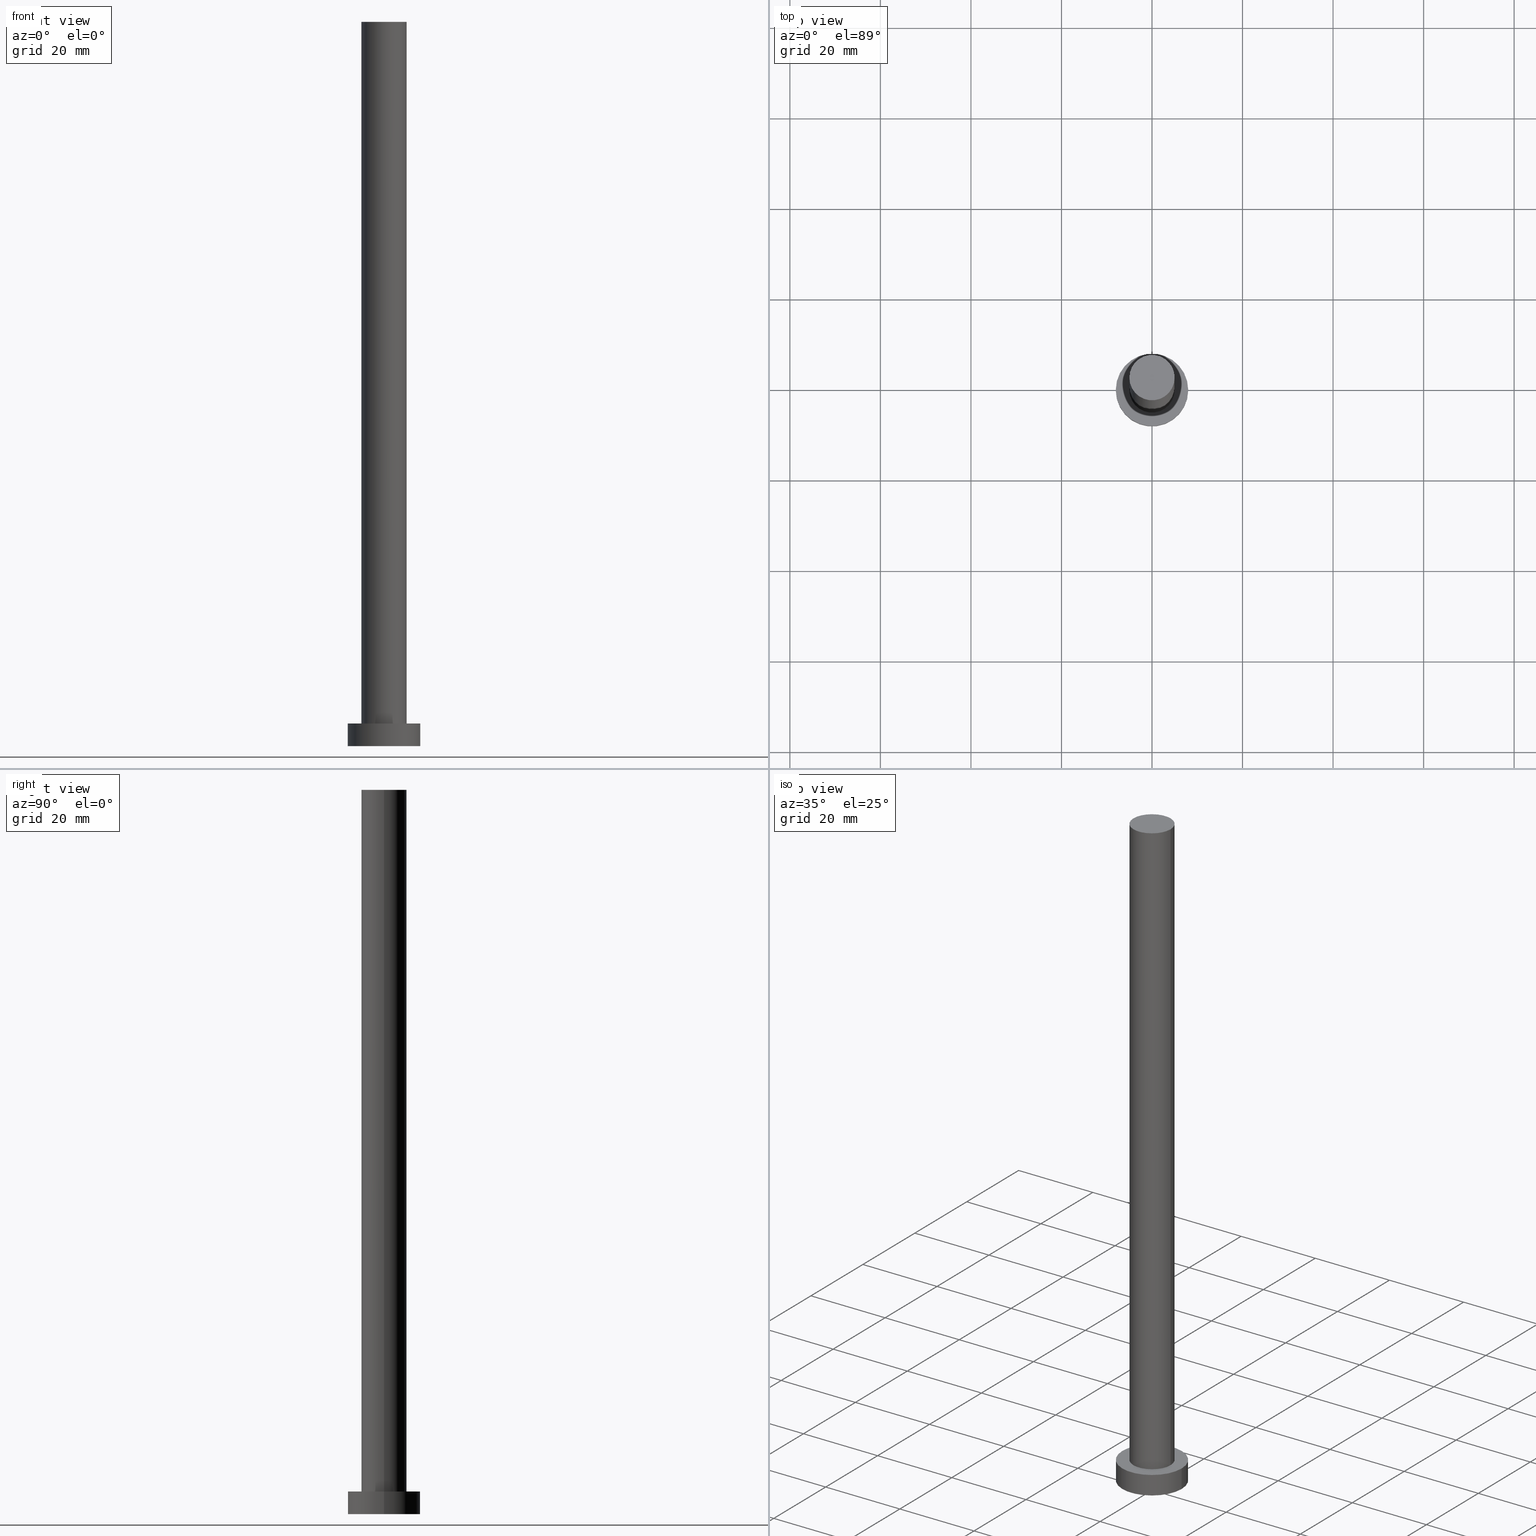
[diagram: canonical four-view strip — front | top / right | iso, engineering-drawing reading convention]
A machine part, canonical four-view strip (front | top / right | iso — engineering-drawing reading convention). The complete STEP part file that produces these views, byte-faithful:
ISO-10303-21;
HEADER;
FILE_DESCRIPTION (( 'STEP AP203' ),
    '1' );
FILE_NAME ('f881.STEP',
    '2023-02-13T09:59:52',
    ( '' ),
    ( '' ),
    'SwSTEP 2.0',
    'SolidWorks 2019',
    '' );
FILE_SCHEMA (( 'CONFIG_CONTROL_DESIGN' ));
ENDSEC;

DATA;
#1 = CARTESIAN_POINT ( 'NONE',  ( 0.000000000000000000, 0.000000000000000000, 5.000000000000000000 ) ) ;
#2 = DIRECTION ( 'NONE',  ( -0.000000000000000000, -0.000000000000000000, -1.000000000000000000 ) ) ;
#3 = MECHANICAL_CONTEXT ( 'NONE', #210, 'mechanical' ) ;
#4 = CC_DESIGN_PERSON_AND_ORGANIZATION_ASSIGNMENT ( #136, #18, ( #250 ) ) ;
#5 = EDGE_CURVE ( 'NONE', #61, #135, #111, .T. ) ;
#6 = EDGE_LOOP ( 'NONE', ( #156, #59, #101, #84 ) ) ;
#7 = AXIS2_PLACEMENT_3D ( 'NONE', #244, #173, #52 ) ;
#8 = CARTESIAN_POINT ( 'NONE',  ( 0.000000000000000000, 0.000000000000000000, 0.000000000000000000 ) ) ;
#9 = DIRECTION ( 'NONE',  ( -0.000000000000000000, -0.000000000000000000, -1.000000000000000000 ) ) ;
#10 = CARTESIAN_POINT ( 'NONE',  ( 0.000000000000000000, 0.000000000000000000, 0.000000000000000000 ) ) ;
#11 = CARTESIAN_POINT ( 'NONE',  ( -5.000000000000000888, 0.000000000000000000, 160.0000000000000000 ) ) ;
#12 = COORDINATED_UNIVERSAL_TIME_OFFSET ( 1, 0, .AHEAD. ) ;
#13 = ORIENTED_EDGE ( 'NONE', *, *, #5, .T. ) ;
#14 = CARTESIAN_POINT ( 'NONE',  ( 0.000000000000000000, 0.000000000000000000, 5.000000000000000000 ) ) ;
#15 = COORDINATED_UNIVERSAL_TIME_OFFSET ( 1, 0, .AHEAD. ) ;
#16 = LINE ( 'NONE', #11, #89 ) ;
#17 = PERSON_AND_ORGANIZATION ( #64, #200 ) ;
#18 = PERSON_AND_ORGANIZATION_ROLE ( 'classification_officer' ) ;
#19 = EDGE_CURVE ( 'NONE', #247, #108, #204, .T. ) ;
#20 = CC_DESIGN_SECURITY_CLASSIFICATION ( #250, ( #107 ) ) ;
#21 = ORIENTED_EDGE ( 'NONE', *, *, #45, .F. ) ;
#22 = CARTESIAN_POINT ( 'NONE',  ( -8.000000000000000000, 0.000000000000000000, 5.000000000000000000 ) ) ;
#23 = DIRECTION ( 'NONE',  ( 0.000000000000000000, 0.000000000000000000, 1.000000000000000000 ) ) ;
#24 = DIRECTION ( 'NONE',  ( 0.000000000000000000, 0.000000000000000000, 1.000000000000000000 ) ) ;
#25 = FACE_OUTER_BOUND ( 'NONE', #44, .T. ) ;
#26 = CYLINDRICAL_SURFACE ( 'NONE', #92, 8.000000000000000000 ) ;
#27 = CLOSED_SHELL ( 'NONE', ( #159, #229, #116, #184, #142, #246, #76 ) ) ;
#28 = CARTESIAN_POINT ( 'NONE',  ( 0.000000000000000000, 0.000000000000000000, 160.0000000000000000 ) ) ;
#29 = CC_DESIGN_PERSON_AND_ORGANIZATION_ASSIGNMENT ( #153, #228, ( #87 ) ) ;
#30 = FACE_BOUND ( 'NONE', #42, .T. ) ;
#31 = EDGE_LOOP ( 'NONE', ( #208, #211, #163, #60 ) ) ;
#32 = CARTESIAN_POINT ( 'NONE',  ( -8.000000000000000000, 0.000000000000000000, 5.000000000000000000 ) ) ;
#33 = VERTEX_POINT ( 'NONE', #46 ) ;
#34 = VECTOR ( 'NONE', #9, 1000.000000000000000 ) ;
#35 = AXIS2_PLACEMENT_3D ( 'NONE', #202, #242, #100 ) ;
#36 = APPROVAL_DATE_TIME ( #40, #131 ) ;
#37 = ORIENTED_EDGE ( 'NONE', *, *, #81, .T. ) ;
#38 = DATE_TIME_ROLE ( 'creation_date' ) ;
#39 = ORIENTED_EDGE ( 'NONE', *, *, #5, .F. ) ;
#40 = DATE_AND_TIME ( #171, #206 ) ;
#41 = ORIENTED_EDGE ( 'NONE', *, *, #109, .F. ) ;
#42 = EDGE_LOOP ( 'NONE', ( #21, #39 ) ) ;
#43 = APPROVAL_PERSON_ORGANIZATION ( #234, #95, #58 ) ;
#44 = EDGE_LOOP ( 'NONE', ( #91, #56 ) ) ;
#45 = EDGE_CURVE ( 'NONE', #135, #61, #155, .T. ) ;
#46 = CARTESIAN_POINT ( 'NONE',  ( 5.000000000000000888, 6.123233995736767268E-16, 160.0000000000000000 ) ) ;
#47 = AXIS2_PLACEMENT_3D ( 'NONE', #8, #23, #178 ) ;
#48 = DIRECTION ( 'NONE',  ( -1.000000000000000000, 0.000000000000000000, 0.000000000000000000 ) ) ;
#49 = LOCAL_TIME ( 10, 59, 52.00000000000000000, #224 ) ;
#50 = DESIGN_CONTEXT ( 'detailed design', #145, 'design' ) ;
#51 = CIRCLE ( 'NONE', #199, 5.000000000000000888 ) ;
#52 = DIRECTION ( 'NONE',  ( 1.000000000000000000, 0.000000000000000000, 0.000000000000000000 ) ) ;
#53 = DATE_AND_TIME ( #73, #49 ) ;
#54 = EDGE_LOOP ( 'NONE', ( #130, #249 ) ) ;
#55 = APPROVAL_DATE_TIME ( #144, #95 ) ;
#56 = ORIENTED_EDGE ( 'NONE', *, *, #251, .T. ) ;
#57 = VECTOR ( 'NONE', #227, 1000.000000000000000 ) ;
#58 = APPROVAL_ROLE ( '' ) ;
#59 = ORIENTED_EDGE ( 'NONE', *, *, #245, .T. ) ;
#60 = ORIENTED_EDGE ( 'NONE', *, *, #237, .T. ) ;
#61 = VERTEX_POINT ( 'NONE', #128 ) ;
#62 = LOCAL_TIME ( 10, 59, 52.00000000000000000, #12 ) ;
#63 = DIRECTION ( 'NONE',  ( -1.000000000000000000, 0.000000000000000000, 0.000000000000000000 ) ) ;
#64 = PERSON ( 'NEUR�EN�', 'NEUR�EN�', 'NEUR�EN�', ('NEUR�EN�'), ('NEUR�EN�'), ('NEUR�EN�') ) ;
#65 = DIRECTION ( 'NONE',  ( 1.000000000000000000, 0.000000000000000000, 0.000000000000000000 ) ) ;
#66 =( LENGTH_UNIT ( ) NAMED_UNIT ( * ) SI_UNIT ( .MILLI., .METRE. ) );
#67 = CC_DESIGN_APPROVAL ( #131, ( #250 ) ) ;
#68 = CYLINDRICAL_SURFACE ( 'NONE', #129, 5.000000000000000888 ) ;
#69 = UNCERTAINTY_MEASURE_WITH_UNIT (LENGTH_MEASURE( 1.000000000000000082E-05 ), #66, 'distance_accuracy_value', 'NONE');
#70 = CARTESIAN_POINT ( 'NONE',  ( 0.000000000000000000, 0.000000000000000000, 160.0000000000000000 ) ) ;
#71 = CARTESIAN_POINT ( 'NONE',  ( -5.000000000000000888, 0.000000000000000000, 5.000000000000000000 ) ) ;
#72 = CC_DESIGN_PERSON_AND_ORGANIZATION_ASSIGNMENT ( #174, #93, ( #107 ) ) ;
#73 = CALENDAR_DATE ( 2023, 13, 2 ) ;
#74 = DIRECTION ( 'NONE',  ( -1.000000000000000000, 0.000000000000000000, 0.000000000000000000 ) ) ;
#75 = DATE_TIME_ROLE ( 'classification_date' ) ;
#76 = ADVANCED_FACE ( 'NONE', ( #126 ), #201, .T. ) ;
#77 = CIRCLE ( 'NONE', #47, 8.000000000000000000 ) ;
#78 = APPROVAL_PERSON_ORGANIZATION ( #133, #146, #180 ) ;
#79 = ORIENTED_EDGE ( 'NONE', *, *, #214, .T. ) ;
#80 = EDGE_LOOP ( 'NONE', ( #127, #139, #13, #218 ) ) ;
#81 = EDGE_CURVE ( 'NONE', #33, #83, #179, .T. ) ;
#82 = CALENDAR_DATE ( 2023, 13, 2 ) ;
#83 = VERTEX_POINT ( 'NONE', #85 ) ;
#84 = ORIENTED_EDGE ( 'NONE', *, *, #19, .F. ) ;
#85 = CARTESIAN_POINT ( 'NONE',  ( -5.000000000000000888, 0.000000000000000000, 160.0000000000000000 ) ) ;
#86 = DIRECTION ( 'NONE',  ( 0.000000000000000000, 0.000000000000000000, 1.000000000000000000 ) ) ;
#87 = PRODUCT ( 'f881', 'f881', '', ( #3 ) ) ;
#88 = DIRECTION ( 'NONE',  ( -1.000000000000000000, 0.000000000000000000, 0.000000000000000000 ) ) ;
#89 = VECTOR ( 'NONE', #172, 1000.000000000000000 ) ;
#90 = CC_DESIGN_PERSON_AND_ORGANIZATION_ASSIGNMENT ( #17, #94, ( #107 ) ) ;
#91 = ORIENTED_EDGE ( 'NONE', *, *, #121, .T. ) ;
#92 = AXIS2_PLACEMENT_3D ( 'NONE', #103, #2, #88 ) ;
#93 = PERSON_AND_ORGANIZATION_ROLE ( 'design_supplier' ) ;
#94 = PERSON_AND_ORGANIZATION_ROLE ( 'creator' ) ;
#95 = APPROVAL ( #217, 'NEUR�EN�' ) ;
#96 = APPROVAL_STATUS ( 'not_yet_approved' ) ;
#97 = LINE ( 'NONE', #122, #190 ) ;
#98 = CARTESIAN_POINT ( 'NONE',  ( 0.000000000000000000, 0.000000000000000000, 160.0000000000000000 ) ) ;
#99 = VERTEX_POINT ( 'NONE', #207 ) ;
#100 = DIRECTION ( 'NONE',  ( 1.000000000000000000, 0.000000000000000000, 0.000000000000000000 ) ) ;
#101 = ORIENTED_EDGE ( 'NONE', *, *, #231, .T. ) ;
#102 = PLANE ( 'NONE',  #160 ) ;
#103 = CARTESIAN_POINT ( 'NONE',  ( 0.000000000000000000, 0.000000000000000000, 5.000000000000000000 ) ) ;
#104 = CARTESIAN_POINT ( 'NONE',  ( 5.000000000000000888, 6.123233995736767268E-16, 160.0000000000000000 ) ) ;
#105 = DIRECTION ( 'NONE',  ( 1.000000000000000000, 0.000000000000000000, 0.000000000000000000 ) ) ;
#106 = AXIS2_PLACEMENT_3D ( 'NONE', #162, #110, #141 ) ;
#107 = PRODUCT_DEFINITION_FORMATION_WITH_SPECIFIED_SOURCE ( 'LIBOVOLN�', '', #87, .NOT_KNOWN. ) ;
#108 = VERTEX_POINT ( 'NONE', #167 ) ;
#109 = EDGE_CURVE ( 'NONE', #33, #61, #151, .T. ) ;
#110 = DIRECTION ( 'NONE',  ( 0.000000000000000000, 0.000000000000000000, 1.000000000000000000 ) ) ;
#111 = CIRCLE ( 'NONE', #113, 5.000000000000000888 ) ;
#112 = APPROVAL_STATUS ( 'not_yet_approved' ) ;
#113 = AXIS2_PLACEMENT_3D ( 'NONE', #197, #148, #220 ) ;
#114 = SHAPE_DEFINITION_REPRESENTATION ( #195, #188 ) ;
#115 = CALENDAR_DATE ( 2023, 13, 2 ) ;
#116 = ADVANCED_FACE ( 'NONE', ( #203 ), #26, .T. ) ;
#117 = DIRECTION ( 'NONE',  ( 0.000000000000000000, 0.000000000000000000, 1.000000000000000000 ) ) ;
#118 = CYLINDRICAL_SURFACE ( 'NONE', #252, 5.000000000000000888 ) ;
#119 =( GEOMETRIC_REPRESENTATION_CONTEXT ( 3 ) GLOBAL_UNCERTAINTY_ASSIGNED_CONTEXT ( ( #69 ) ) GLOBAL_UNIT_ASSIGNED_CONTEXT ( ( #66, #164, #152 ) ) REPRESENTATION_CONTEXT ( 'NONE', 'WORKASPACE' ) );
#120 = EDGE_LOOP ( 'NONE', ( #41, #123, #216, #238 ) ) ;
#121 = EDGE_CURVE ( 'NONE', #247, #233, #198, .T. ) ;
#122 = CARTESIAN_POINT ( 'NONE',  ( 8.000000000000000000, 9.797174393178825657E-16, 5.000000000000000000 ) ) ;
#123 = ORIENTED_EDGE ( 'NONE', *, *, #214, .F. ) ;
#124 = APPROVAL_DATE_TIME ( #223, #146 ) ;
#125 = MANIFOLD_SOLID_BREP ( 'P�idat vysunut�m3', #27 ) ;
#126 = FACE_OUTER_BOUND ( 'NONE', #175, .T. ) ;
#127 = ORIENTED_EDGE ( 'NONE', *, *, #81, .F. ) ;
#128 = CARTESIAN_POINT ( 'NONE',  ( 5.000000000000000888, 6.123233995736767268E-16, 5.000000000000000000 ) ) ;
#129 = AXIS2_PLACEMENT_3D ( 'NONE', #241, #182, #48 ) ;
#130 = ORIENTED_EDGE ( 'NONE', *, *, #237, .F. ) ;
#131 = APPROVAL ( #112, 'NEUR�EN�' ) ;
#132 = APPLICATION_PROTOCOL_DEFINITION ( 'international standard', 'config_control_design', 1994, #145 ) ;
#133 = PERSON_AND_ORGANIZATION ( #64, #200 ) ;
#134 = FACE_OUTER_BOUND ( 'NONE', #6, .T. ) ;
#135 = VERTEX_POINT ( 'NONE', #71 ) ;
#136 = PERSON_AND_ORGANIZATION ( #64, #200 ) ;
#137 = AXIS2_PLACEMENT_3D ( 'NONE', #28, #169, #65 ) ;
#138 = COORDINATED_UNIVERSAL_TIME_OFFSET ( 1, 0, .AHEAD. ) ;
#139 = ORIENTED_EDGE ( 'NONE', *, *, #109, .T. ) ;
#140 = EDGE_CURVE ( 'NONE', #83, #135, #16, .T. ) ;
#141 = DIRECTION ( 'NONE',  ( 1.000000000000000000, 0.000000000000000000, 0.000000000000000000 ) ) ;
#142 = ADVANCED_FACE ( 'NONE', ( #157 ), #219, .F. ) ;
#143 = FACE_OUTER_BOUND ( 'NONE', #80, .T. ) ;
#144 = DATE_AND_TIME ( #115, #226 ) ;
#145 = APPLICATION_CONTEXT ( 'configuration controlled 3d designs of mechanical parts and assemblies' ) ;
#146 = APPROVAL ( #96, 'NEUR�EN�' ) ;
#147 = CARTESIAN_POINT ( 'NONE',  ( 0.000000000000000000, 0.000000000000000000, 0.000000000000000000 ) ) ;
#148 = DIRECTION ( 'NONE',  ( 0.000000000000000000, 0.000000000000000000, 1.000000000000000000 ) ) ;
#149 = AXIS2_PLACEMENT_3D ( 'NONE', #98, #185, #255 ) ;
#150 = DIRECTION ( 'NONE',  ( -0.000000000000000000, -0.000000000000000000, -1.000000000000000000 ) ) ;
#151 = LINE ( 'NONE', #104, #57 ) ;
#152 =( NAMED_UNIT ( * ) SI_UNIT ( $, .STERADIAN. ) SOLID_ANGLE_UNIT ( ) );
#153 = PERSON_AND_ORGANIZATION ( #64, #200 ) ;
#154 = CC_DESIGN_DATE_AND_TIME_ASSIGNMENT ( #53, #38, ( #191 ) ) ;
#155 = CIRCLE ( 'NONE', #176, 5.000000000000000888 ) ;
#156 = ORIENTED_EDGE ( 'NONE', *, *, #251, .F. ) ;
#157 = FACE_OUTER_BOUND ( 'NONE', #54, .T. ) ;
#158 = PERSON_AND_ORGANIZATION ( #64, #200 ) ;
#159 = ADVANCED_FACE ( 'NONE', ( #143 ), #68, .T. ) ;
#160 = AXIS2_PLACEMENT_3D ( 'NONE', #1, #170, #230 ) ;
#161 = AXIS2_PLACEMENT_3D ( 'NONE', #14, #189, #74 ) ;
#162 = CARTESIAN_POINT ( 'NONE',  ( 0.000000000000000000, 0.000000000000000000, 0.000000000000000000 ) ) ;
#163 = ORIENTED_EDGE ( 'NONE', *, *, #19, .T. ) ;
#164 =( NAMED_UNIT ( * ) PLANE_ANGLE_UNIT ( ) SI_UNIT ( $, .RADIAN. ) );
#165 = DIRECTION ( 'NONE',  ( 1.000000000000000000, 0.000000000000000000, -0.000000000000000000 ) ) ;
#166 = PERSON_AND_ORGANIZATION_ROLE ( 'creator' ) ;
#167 = CARTESIAN_POINT ( 'NONE',  ( -8.000000000000000000, 0.000000000000000000, 0.000000000000000000 ) ) ;
#168 = APPLICATION_PROTOCOL_DEFINITION ( 'international standard', 'config_control_design', 1994, #210 ) ;
#169 = DIRECTION ( 'NONE',  ( 0.000000000000000000, 0.000000000000000000, 1.000000000000000000 ) ) ;
#170 = DIRECTION ( 'NONE',  ( 0.000000000000000000, 0.000000000000000000, 1.000000000000000000 ) ) ;
#171 = CALENDAR_DATE ( 2023, 13, 2 ) ;
#172 = DIRECTION ( 'NONE',  ( -0.000000000000000000, -0.000000000000000000, -1.000000000000000000 ) ) ;
#173 = DIRECTION ( 'NONE',  ( 0.000000000000000000, 0.000000000000000000, 1.000000000000000000 ) ) ;
#174 = PERSON_AND_ORGANIZATION ( #64, #200 ) ;
#175 = EDGE_LOOP ( 'NONE', ( #79, #37 ) ) ;
#176 = AXIS2_PLACEMENT_3D ( 'NONE', #186, #24, #183 ) ;
#177 = LOCAL_TIME ( 10, 59, 52.00000000000000000, #253 ) ;
#178 = DIRECTION ( 'NONE',  ( 1.000000000000000000, 0.000000000000000000, 0.000000000000000000 ) ) ;
#179 = CIRCLE ( 'NONE', #137, 5.000000000000000888 ) ;
#180 = APPROVAL_ROLE ( '' ) ;
#181 = AXIS2_PLACEMENT_3D ( 'NONE', #10, #86, #105 ) ;
#182 = DIRECTION ( 'NONE',  ( -0.000000000000000000, -0.000000000000000000, -1.000000000000000000 ) ) ;
#183 = DIRECTION ( 'NONE',  ( 1.000000000000000000, 0.000000000000000000, 0.000000000000000000 ) ) ;
#184 = ADVANCED_FACE ( 'NONE', ( #30, #25 ), #102, .T. ) ;
#185 = DIRECTION ( 'NONE',  ( 0.000000000000000000, 0.000000000000000000, 1.000000000000000000 ) ) ;
#186 = CARTESIAN_POINT ( 'NONE',  ( 0.000000000000000000, 0.000000000000000000, 5.000000000000000000 ) ) ;
#187 = CARTESIAN_POINT ( 'NONE',  ( 8.000000000000000000, 9.797174393178825657E-16, 5.000000000000000000 ) ) ;
#188 = ADVANCED_BREP_SHAPE_REPRESENTATION ( 'f881', ( #125, #181 ), #119 ) ;
#189 = DIRECTION ( 'NONE',  ( -0.000000000000000000, -0.000000000000000000, -1.000000000000000000 ) ) ;
#190 = VECTOR ( 'NONE', #150, 1000.000000000000000 ) ;
#191 = PRODUCT_DEFINITION ( 'NEZN�M�', '', #107, #50 ) ;
#192 = APPROVAL_PERSON_ORGANIZATION ( #158, #131, #232 ) ;
#193 = DIRECTION ( 'NONE',  ( 1.000000000000000000, 0.000000000000000000, 0.000000000000000000 ) ) ;
#194 = CC_DESIGN_APPROVAL ( #95, ( #107 ) ) ;
#195 = PRODUCT_DEFINITION_SHAPE ( 'NONE', 'NONE',  #191 ) ;
#196 = DIRECTION ( 'NONE',  ( -0.000000000000000000, -0.000000000000000000, -1.000000000000000000 ) ) ;
#197 = CARTESIAN_POINT ( 'NONE',  ( 0.000000000000000000, 0.000000000000000000, 5.000000000000000000 ) ) ;
#198 = CIRCLE ( 'NONE', #7, 8.000000000000000000 ) ;
#199 = AXIS2_PLACEMENT_3D ( 'NONE', #70, #117, #193 ) ;
#200 = ORGANIZATION ( 'NEUR�EN�', 'NEUR�EN�', '' ) ;
#201 = PLANE ( 'NONE',  #149 ) ;
#202 = CARTESIAN_POINT ( 'NONE',  ( 0.000000000000000000, 0.000000000000000000, 5.000000000000000000 ) ) ;
#203 = FACE_OUTER_BOUND ( 'NONE', #31, .T. ) ;
#204 = LINE ( 'NONE', #32, #34 ) ;
#205 = CIRCLE ( 'NONE', #106, 8.000000000000000000 ) ;
#206 = LOCAL_TIME ( 10, 59, 52.00000000000000000, #15 ) ;
#207 = CARTESIAN_POINT ( 'NONE',  ( 8.000000000000000000, 9.797174393178825657E-16, 0.000000000000000000 ) ) ;
#208 = ORIENTED_EDGE ( 'NONE', *, *, #245, .F. ) ;
#209 = CC_DESIGN_PERSON_AND_ORGANIZATION_ASSIGNMENT ( #254, #166, ( #191 ) ) ;
#210 = APPLICATION_CONTEXT ( 'configuration controlled 3d designs of mechanical parts and assemblies' ) ;
#211 = ORIENTED_EDGE ( 'NONE', *, *, #121, .F. ) ;
#212 = CYLINDRICAL_SURFACE ( 'NONE', #161, 8.000000000000000000 ) ;
#213 = CALENDAR_DATE ( 2023, 13, 2 ) ;
#214 = EDGE_CURVE ( 'NONE', #83, #33, #51, .T. ) ;
#215 = DATE_AND_TIME ( #213, #62 ) ;
#216 = ORIENTED_EDGE ( 'NONE', *, *, #140, .T. ) ;
#217 = APPROVAL_STATUS ( 'not_yet_approved' ) ;
#218 = ORIENTED_EDGE ( 'NONE', *, *, #140, .F. ) ;
#219 = PLANE ( 'NONE',  #235 ) ;
#220 = DIRECTION ( 'NONE',  ( 1.000000000000000000, 0.000000000000000000, 0.000000000000000000 ) ) ;
#221 = CC_DESIGN_DATE_AND_TIME_ASSIGNMENT ( #215, #75, ( #250 ) ) ;
#222 = PRODUCT_RELATED_PRODUCT_CATEGORY ( 'detail', '', ( #87 ) ) ;
#223 = DATE_AND_TIME ( #82, #177 ) ;
#224 = COORDINATED_UNIVERSAL_TIME_OFFSET ( 1, 0, .AHEAD. ) ;
#225 = CIRCLE ( 'NONE', #35, 8.000000000000000000 ) ;
#226 = LOCAL_TIME ( 10, 59, 52.00000000000000000, #138 ) ;
#227 = DIRECTION ( 'NONE',  ( -0.000000000000000000, -0.000000000000000000, -1.000000000000000000 ) ) ;
#228 = PERSON_AND_ORGANIZATION_ROLE ( 'design_owner' ) ;
#229 = ADVANCED_FACE ( 'NONE', ( #134 ), #212, .T. ) ;
#230 = DIRECTION ( 'NONE',  ( 1.000000000000000000, 0.000000000000000000, -0.000000000000000000 ) ) ;
#231 = EDGE_CURVE ( 'NONE', #99, #108, #205, .T. ) ;
#232 = APPROVAL_ROLE ( '' ) ;
#233 = VERTEX_POINT ( 'NONE', #187 ) ;
#234 = PERSON_AND_ORGANIZATION ( #64, #200 ) ;
#235 = AXIS2_PLACEMENT_3D ( 'NONE', #147, #236, #165 ) ;
#236 = DIRECTION ( 'NONE',  ( 0.000000000000000000, 0.000000000000000000, 1.000000000000000000 ) ) ;
#237 = EDGE_CURVE ( 'NONE', #108, #99, #77, .T. ) ;
#238 = ORIENTED_EDGE ( 'NONE', *, *, #45, .T. ) ;
#239 = CARTESIAN_POINT ( 'NONE',  ( 0.000000000000000000, 0.000000000000000000, 160.0000000000000000 ) ) ;
#240 = FACE_OUTER_BOUND ( 'NONE', #120, .T. ) ;
#241 = CARTESIAN_POINT ( 'NONE',  ( 0.000000000000000000, 0.000000000000000000, 160.0000000000000000 ) ) ;
#242 = DIRECTION ( 'NONE',  ( 0.000000000000000000, 0.000000000000000000, 1.000000000000000000 ) ) ;
#243 = CC_DESIGN_APPROVAL ( #146, ( #191 ) ) ;
#244 = CARTESIAN_POINT ( 'NONE',  ( 0.000000000000000000, 0.000000000000000000, 5.000000000000000000 ) ) ;
#245 = EDGE_CURVE ( 'NONE', #233, #99, #97, .T. ) ;
#246 = ADVANCED_FACE ( 'NONE', ( #240 ), #118, .T. ) ;
#247 = VERTEX_POINT ( 'NONE', #22 ) ;
#248 = SECURITY_CLASSIFICATION_LEVEL ( 'unclassified' ) ;
#249 = ORIENTED_EDGE ( 'NONE', *, *, #231, .F. ) ;
#250 = SECURITY_CLASSIFICATION ( '', '', #248 ) ;
#251 = EDGE_CURVE ( 'NONE', #233, #247, #225, .T. ) ;
#252 = AXIS2_PLACEMENT_3D ( 'NONE', #239, #196, #63 ) ;
#253 = COORDINATED_UNIVERSAL_TIME_OFFSET ( 1, 0, .AHEAD. ) ;
#254 = PERSON_AND_ORGANIZATION ( #64, #200 ) ;
#255 = DIRECTION ( 'NONE',  ( 1.000000000000000000, 0.000000000000000000, -0.000000000000000000 ) ) ;
ENDSEC;
END-ISO-10303-21;
